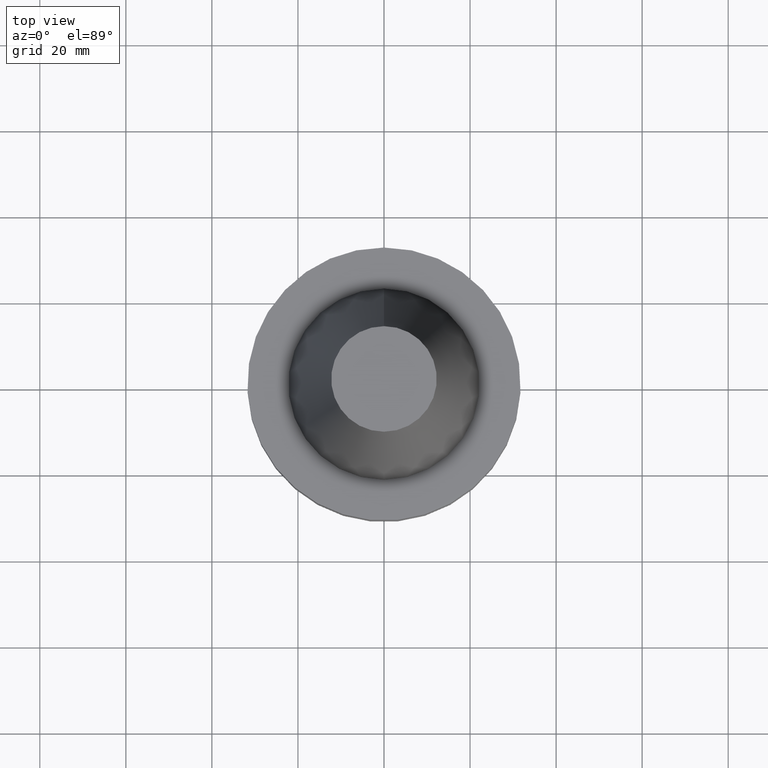
[diagram: clean part render]
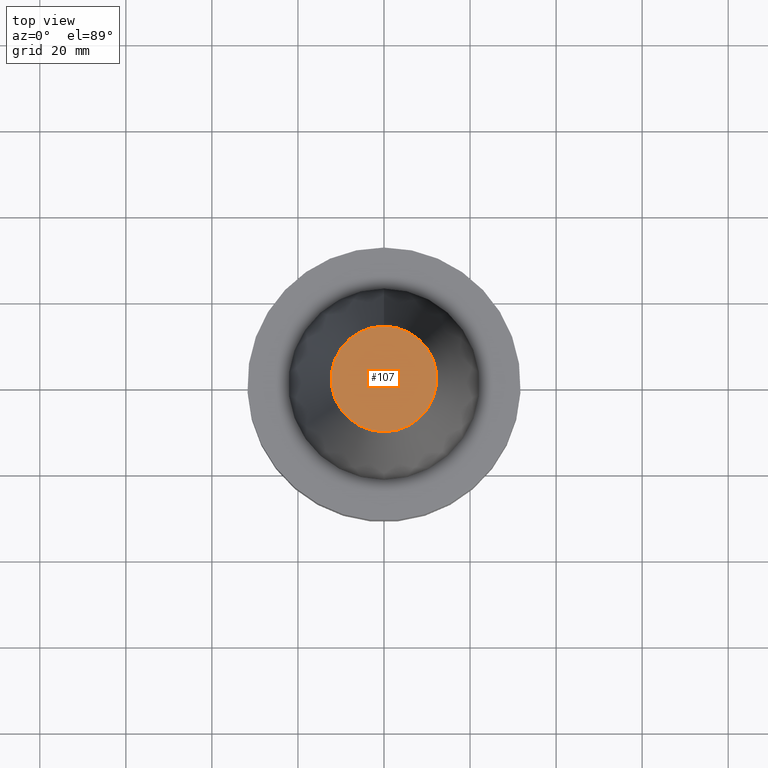
[diagram: same view with one face highlighted and labeled with its STEP entity id]
A machine part, top view. The second image highlights one B-rep face of the part: STEP entity #107.
In plain terms, the highlighted planar face has unit normal (-0, -0, 1).
Its self-contained STEP definition (entity closure, byte-faithful):
#101=EDGE_CURVE('Unnamed[1]',#219,#219,#220,.T.);
#107=ADVANCED_FACE('Unnamed[1]',(#228),#229,.T.);
#219=VERTEX_POINT('',#361);
#220=CIRCLE('',#362,12.271875);
#228=FACE_OUTER_BOUND('',#372,.T.);
#229=PLANE('',#373);
#361=CARTESIAN_POINT('',(-4.17910720209035E-015,12.271875,68.2500000000002));
#362=AXIS2_PLACEMENT_3D('',#498,#499,#500);
#372=EDGE_LOOP('',(#508));
#373=AXIS2_PLACEMENT_3D('',#509,#510,#511);
#498=CARTESIAN_POINT('',(-4.17910720209035E-015,-6.2608719657446E-014,68.2500000000002));
#499=DIRECTION('',(6.12323399573677E-017,8.5186044512499E-016,-1.0));
#500=DIRECTION('',(-5.6988561102894E-032,1.0,8.5186044512499E-016));
#508=ORIENTED_EDGE('',*,*,#101,.F.);
#509=CARTESIAN_POINT('',(-4.17910720209035E-015,6.13593749999994,68.2500000000002));
#510=DIRECTION('',(-6.12323399573677E-017,-1.22464679914735E-016,1.0));
#511=DIRECTION('',(1.23259516440783E-032,-1.0,-1.22464679914735E-016));